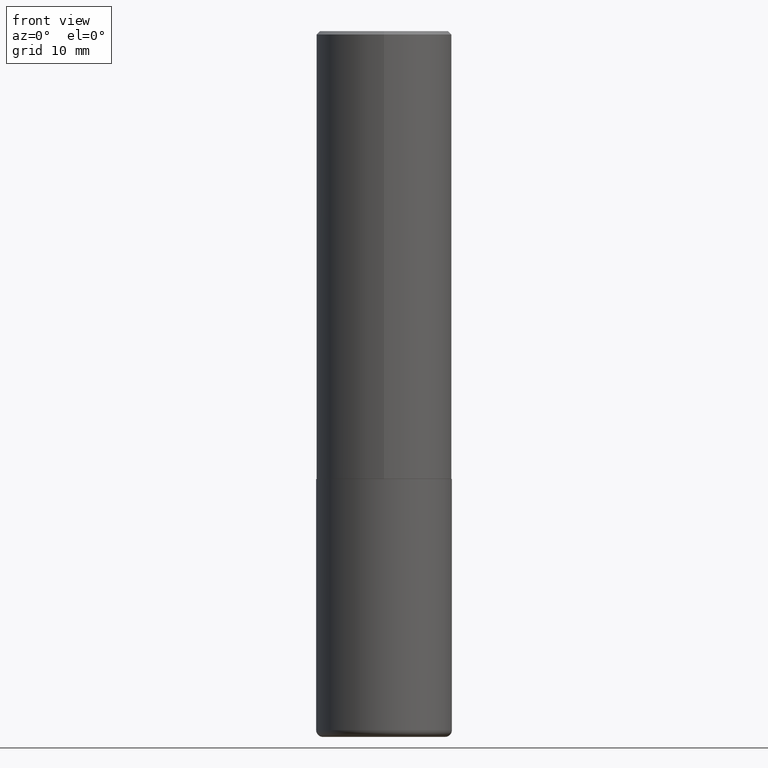
[diagram: clean part render]
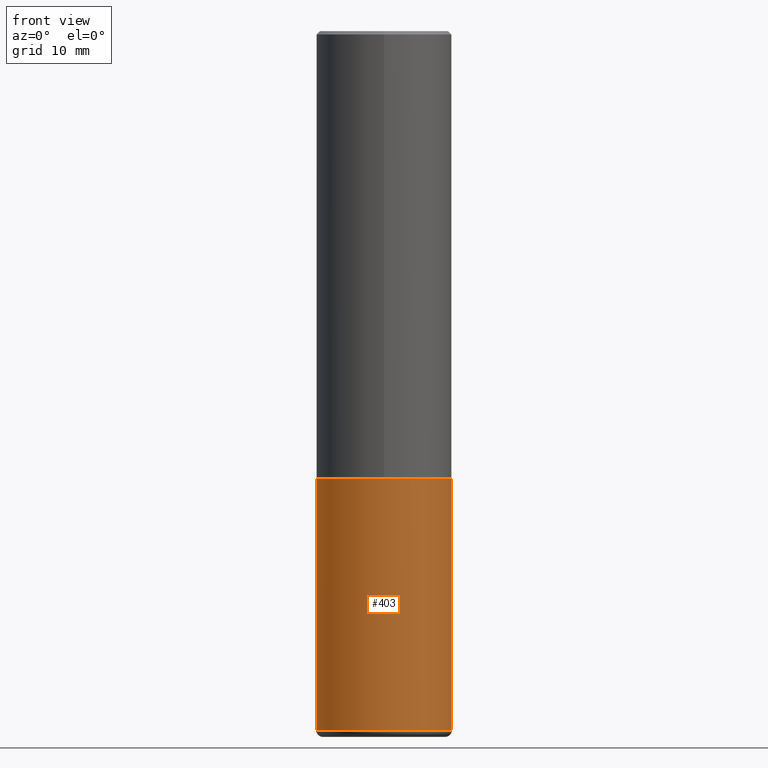
[diagram: same view with one face highlighted and labeled with its STEP entity id]
A machine part, front view. The second image highlights one B-rep face of the part: STEP entity #403.
In plain terms, the highlighted cylindrical surface (partial cylindrical patch) has radius 10 mm, axis along (-0, 0, 1).
Its self-contained STEP definition (entity closure, byte-faithful):
#2 = EDGE_LOOP ( 'NONE', ( #32, #122, #293, #216 ) ) ;
#4 = AXIS2_PLACEMENT_3D ( 'NONE', #298, #327, #412 ) ;
#21 = DIRECTION ( 'NONE',  ( -2.445468806185136877E-29, 3.491481338843145188E-15, 1.000000000000000000 ) ) ;
#32 = ORIENTED_EDGE ( 'NONE', *, *, #82, .F. ) ;
#39 = VECTOR ( 'NONE', #21, 39.37007874015748143 ) ;
#40 = CARTESIAN_POINT ( 'NONE',  ( -0.3937000000000001054, 2.797406750687515181E-15, -1.936584745033357016E-29 ) ) ;
#44 = DIRECTION ( 'NONE',  ( 1.000000000000000000, -6.982962677686266711E-15, 4.876176775795935793E-29 ) ) ;
#62 = VERTEX_POINT ( 'NONE', #203 ) ;
#65 = VERTEX_POINT ( 'NONE', #81 ) ;
#70 = AXIS2_PLACEMENT_3D ( 'NONE', #75, #261, #44 ) ;
#75 = CARTESIAN_POINT ( 'NONE',  ( 0.000000000000000000, 0.000000000000000000, 0.000000000000000000 ) ) ;
#81 = CARTESIAN_POINT ( 'NONE',  ( 0.3937000000000001054, -1.690749838334792550E-14, -4.055100000000000371 ) ) ;
#82 = EDGE_CURVE ( 'NONE', #62, #260, #383, .T. ) ;
#102 = DIRECTION ( 'NONE',  ( -2.445468806185136597E-29, 3.491481338843145583E-15, 1.000000000000000000 ) ) ;
#107 = CARTESIAN_POINT ( 'NONE',  ( 6.354306145991459756E-29, -9.072265110850031044E-15, -2.598400000000000265 ) ) ;
#122 = ORIENTED_EDGE ( 'NONE', *, *, #193, .T. ) ;
#166 = DIRECTION ( 'NONE',  ( -2.445468806185136877E-29, 3.491481338843145188E-15, 1.000000000000000000 ) ) ;
#192 = VERTEX_POINT ( 'NONE', #197 ) ;
#193 = EDGE_CURVE ( 'NONE', #62, #65, #234, .T. ) ;
#197 = CARTESIAN_POINT ( 'NONE',  ( 0.3937000000000000499, -1.182145751705511584E-14, -2.598400000000000265 ) ) ;
#201 = AXIS2_PLACEMENT_3D ( 'NONE', #107, #102, #396 ) ;
#203 = CARTESIAN_POINT ( 'NONE',  ( -0.3937000000000001054, -1.136089922645532513E-14, -4.055100000000000371 ) ) ;
#216 = ORIENTED_EDGE ( 'NONE', *, *, #353, .F. ) ;
#217 = VECTOR ( 'NONE', #166, 39.37007874015748143 ) ;
#220 = EDGE_CURVE ( 'NONE', #65, #192, #226, .T. ) ;
#226 = LINE ( 'NONE', #251, #217 ) ;
#234 = CIRCLE ( 'NONE', #4, 0.3937000000000001054 ) ;
#251 = CARTESIAN_POINT ( 'NONE',  ( 0.3937000000000001054, -2.749192406205084005E-15, 1.919750796630860452E-29 ) ) ;
#260 = VERTEX_POINT ( 'NONE', #325 ) ;
#261 = DIRECTION ( 'NONE',  ( -2.445468806185136597E-29, 3.491481338843145583E-15, 1.000000000000000000 ) ) ;
#293 = ORIENTED_EDGE ( 'NONE', *, *, #220, .T. ) ;
#298 = CARTESIAN_POINT ( 'NONE',  ( 9.916620555961347550E-29, -1.415830597714284070E-14, -4.055100000000000371 ) ) ;
#306 = CYLINDRICAL_SURFACE ( 'NONE', #70, 0.3937000000000001054 ) ;
#325 = CARTESIAN_POINT ( 'NONE',  ( -0.3937000000000000499, -8.817878793308920298E-15, -2.598400000000000265 ) ) ;
#327 = DIRECTION ( 'NONE',  ( -2.445468806185136597E-29, 3.491481338843145583E-15, 1.000000000000000000 ) ) ;
#353 = EDGE_CURVE ( 'NONE', #260, #192, #360, .T. ) ;
#360 = CIRCLE ( 'NONE', #201, 0.3937000000000000499 ) ;
#383 = LINE ( 'NONE', #40, #39 ) ;
#394 = FACE_OUTER_BOUND ( 'NONE', #2, .T. ) ;
#396 = DIRECTION ( 'NONE',  ( 1.000000000000000000, -6.982962677686267499E-15, 0.000000000000000000 ) ) ;
#403 = ADVANCED_FACE ( 'NONE', ( #394 ), #306, .T. ) ;
#412 = DIRECTION ( 'NONE',  ( 1.000000000000000000, -6.982962677686266711E-15, 0.000000000000000000 ) ) ;